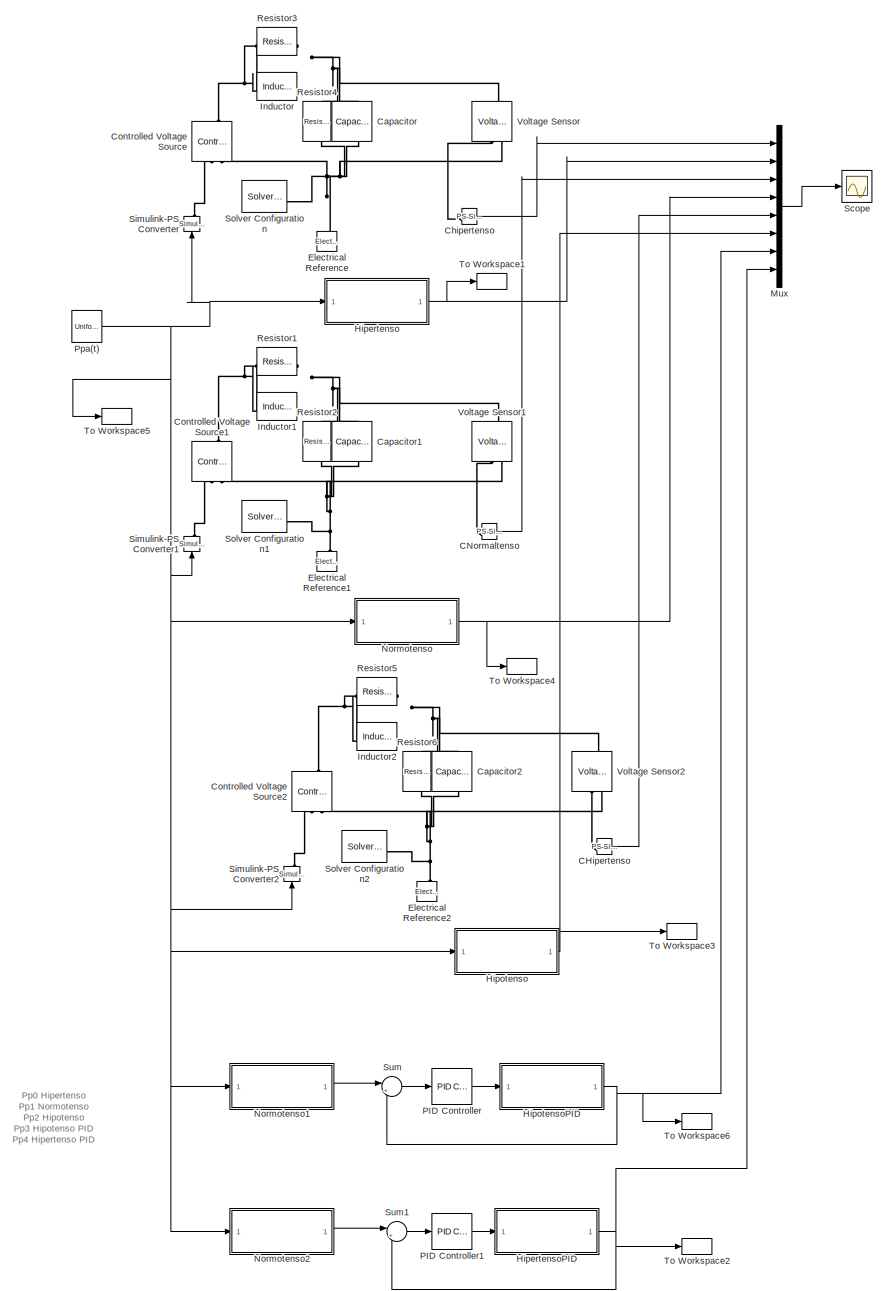
[diagram: root canvas - part 1/1, most of the canvas]
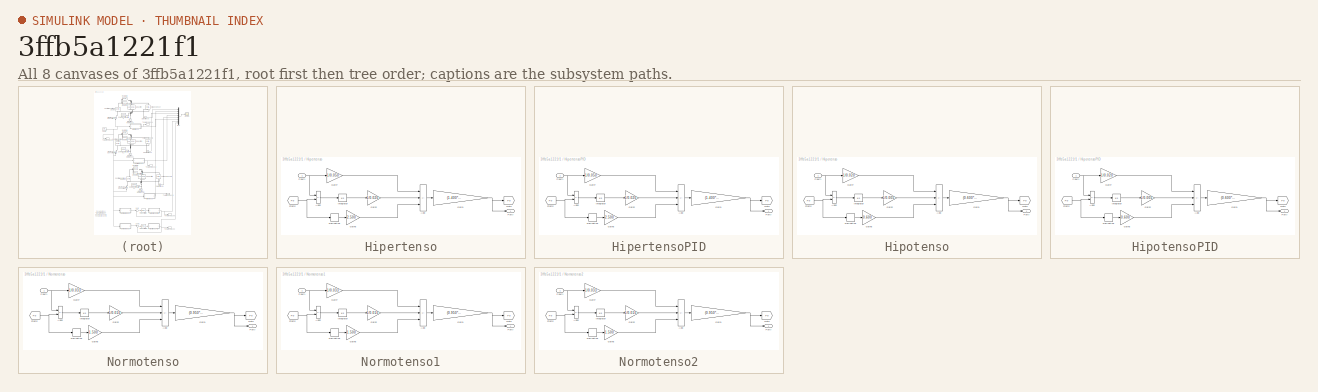
[diagram: thumbnail index - all 8 canvases of the model, root first then tree order]
MODEL slx_3ffb5a1221f1
KIND model
CONFIG AbsTol = auto
CONFIG EnableMultiTasking = off
CONFIG FixedStep = auto
CONFIG MaxStep = 1E-3
CONFIG MinStep = auto
CONFIG RelTol = 1e-5
CONFIG SampleTimeConstraint = Unconstrained
CONFIG SolverName = ode23t
CONFIG StartTime = 0.0
CONFIG StopTime = 10.0
BLOCK [Reference] CHipertenso  REF=nesl_utility/PS-Simulink
Converter
  SourceBlock = nesl_utility/PS-Simulink\nConverter
  SourceType = PS-Simulink\nConverter
BLOCK [Reference] CNormaltenso  REF=nesl_utility/PS-Simulink
Converter
  SourceBlock = nesl_utility/PS-Simulink\nConverter
  SourceType = PS-Simulink\nConverter
BLOCK [Reference] Capacitor  REF=fl_lib/Electrical/Electrical Elements/Capacitor
  NameLocation = left
  SourceBlock = fl_lib/Electrical/Electrical Elements/Capacitor
  SourceType = Capacitor
BLOCK [Reference] Capacitor1  REF=fl_lib/Electrical/Electrical Elements/Capacitor
  NameLocation = left
  SourceBlock = fl_lib/Electrical/Electrical Elements/Capacitor
  SourceType = Capacitor
BLOCK [Reference] Capacitor2  REF=fl_lib/Electrical/Electrical Elements/Capacitor
  NameLocation = left
  SourceBlock = fl_lib/Electrical/Electrical Elements/Capacitor
  SourceType = Capacitor
BLOCK [Reference] Chipertenso  REF=nesl_utility/PS-Simulink
Converter
  SourceBlock = nesl_utility/PS-Simulink\nConverter
  SourceType = PS-Simulink\nConverter
BLOCK [Reference] Controlled Voltage Source  REF=fl_lib/Electrical/Electrical Sources/Controlled Voltage
Source
  NameLocation = right
  SourceBlock = fl_lib/Electrical/Electrical Sources/Controlled Voltage\nSource
  SourceType = Controlled Voltage\nSource
BLOCK [Reference] Controlled Voltage Source1  REF=fl_lib/Electrical/Electrical Sources/Controlled Voltage
Source
  NameLocation = right
  SourceBlock = fl_lib/Electrical/Electrical Sources/Controlled Voltage\nSource
  SourceType = Controlled Voltage\nSource
BLOCK [Reference] Controlled Voltage Source2  REF=fl_lib/Electrical/Electrical Sources/Controlled Voltage
Source
  NameLocation = right
  SourceBlock = fl_lib/Electrical/Electrical Sources/Controlled Voltage\nSource
  SourceType = Controlled Voltage\nSource
BLOCK [Reference] Electrical Reference  REF=fl_lib/Electrical/Electrical Elements/Electrical Reference
  NameLocation = right
  SourceBlock = fl_lib/Electrical/Electrical Elements/Electrical Reference
  SourceType = Electrical Reference
BLOCK [Reference] Electrical Reference1  REF=fl_lib/Electrical/Electrical Elements/Electrical Reference
  NameLocation = right
  SourceBlock = fl_lib/Electrical/Electrical Elements/Electrical Reference
  SourceType = Electrical Reference
BLOCK [Reference] Electrical Reference2  REF=fl_lib/Electrical/Electrical Elements/Electrical Reference
  NameLocation = right
  SourceBlock = fl_lib/Electrical/Electrical Elements/Electrical Reference
  SourceType = Electrical Reference
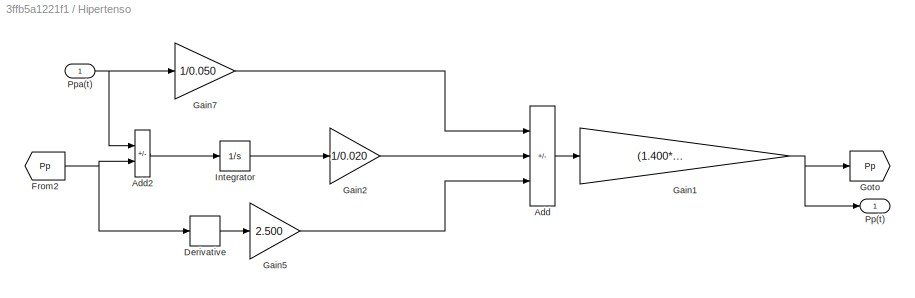
BLOCK [SubSystem] Hipertenso
BLOCK [Sum] Hipertenso/Add
  IconShape = rectangular
  Inputs = ++-
BLOCK [Sum] Hipertenso/Add2
  IconShape = rectangular
  Inputs = +-
BLOCK [Derivative] Hipertenso/Derivative
BLOCK [From] Hipertenso/From2
  GotoTag = Pp
BLOCK [Gain] Hipertenso/Gain1
  Gain = (1.400*0.050)/(1.400+0.050)
BLOCK [Gain] Hipertenso/Gain2
  Gain = 1/0.020
BLOCK [Gain] Hipertenso/Gain5
  Gain = 2.500
BLOCK [Gain] Hipertenso/Gain7
  Gain = 1/0.050
BLOCK [Goto] Hipertenso/Goto
  GotoTag = Pp
BLOCK [Integrator] Hipertenso/Integrator
BLOCK [Outport] Hipertenso/Pp(t)
BLOCK [Inport] Hipertenso/Ppa(t)
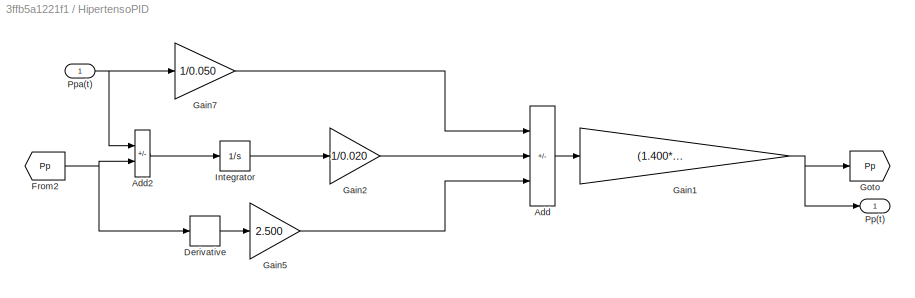
BLOCK [SubSystem] HipertensoPID
BLOCK [Sum] HipertensoPID/Add
  IconShape = rectangular
  Inputs = ++-
BLOCK [Sum] HipertensoPID/Add2
  IconShape = rectangular
  Inputs = +-
BLOCK [Derivative] HipertensoPID/Derivative
BLOCK [From] HipertensoPID/From2
  GotoTag = Pp
BLOCK [Gain] HipertensoPID/Gain1
  Gain = (1.400*0.050)/(1.400+0.050)
BLOCK [Gain] HipertensoPID/Gain2
  Gain = 1/0.020
BLOCK [Gain] HipertensoPID/Gain5
  Gain = 2.500
BLOCK [Gain] HipertensoPID/Gain7
  Gain = 1/0.050
BLOCK [Goto] HipertensoPID/Goto
  GotoTag = Pp
BLOCK [Integrator] HipertensoPID/Integrator
BLOCK [Outport] HipertensoPID/Pp(t)
BLOCK [Inport] HipertensoPID/Ppa(t)
BLOCK [SubSystem] Hipotenso
BLOCK [Sum] Hipotenso/Add
  IconShape = rectangular
  Inputs = ++-
BLOCK [Sum] Hipotenso/Add2
  IconShape = rectangular
  Inputs = +-
BLOCK [Derivative] Hipotenso/Derivative
BLOCK [From] Hipotenso/From2
  GotoTag = Pp
BLOCK [Gain] Hipotenso/Gain1
  Gain = (0.600*0.020)/(0.600+0.020)
BLOCK [Gain] Hipotenso/Gain2
  Gain = 1/0.005
BLOCK [Gain] Hipotenso/Gain5
  Gain = 0.600
BLOCK [Gain] Hipotenso/Gain7
  Gain = 1/0.020
BLOCK [Goto] Hipotenso/Goto
  GotoTag = Pp
BLOCK [Integrator] Hipotenso/Integrator
BLOCK [Outport] Hipotenso/Pp(t)
BLOCK [Inport] Hipotenso/Ppa(t)
BLOCK [SubSystem] HipotensoPID
BLOCK [Sum] HipotensoPID/Add
  IconShape = rectangular
  Inputs = ++-
BLOCK [Sum] HipotensoPID/Add2
  IconShape = rectangular
  Inputs = +-
BLOCK [Derivative] HipotensoPID/Derivative
BLOCK [From] HipotensoPID/From2
  GotoTag = Pp
BLOCK [Gain] HipotensoPID/Gain1
  Gain = (0.600*0.020)/(0.600+0.020)
BLOCK [Gain] HipotensoPID/Gain2
  Gain = 1/0.005
BLOCK [Gain] HipotensoPID/Gain5
  Gain = 0.600
BLOCK [Gain] HipotensoPID/Gain7
  Gain = 1/0.020
BLOCK [Goto] HipotensoPID/Goto
  GotoTag = Pp
BLOCK [Integrator] HipotensoPID/Integrator
BLOCK [Outport] HipotensoPID/Pp(t)
BLOCK [Inport] HipotensoPID/Ppa(t)
BLOCK [Reference] Inductor  REF=ee_lib/Passive/Inductor
  SourceBlock = ee_lib/Passive/Inductor
  SourceType = Inductor
BLOCK [Reference] Inductor1  REF=ee_lib/Passive/Inductor
  SourceBlock = ee_lib/Passive/Inductor
  SourceType = Inductor
BLOCK [Reference] Inductor2  REF=ee_lib/Passive/Inductor
  SourceBlock = ee_lib/Passive/Inductor
  SourceType = Inductor
BLOCK [Mux] Mux
  DisplayOption = bar
  Inputs = 8
BLOCK [SubSystem] Normotenso
BLOCK [Sum] Normotenso/Add
  IconShape = rectangular
  Inputs = ++-
BLOCK [Sum] Normotenso/Add2
  IconShape = rectangular
  Inputs = +-
BLOCK [Derivative] Normotenso/Derivative
BLOCK [From] Normotenso/From2
  GotoTag = Pp
BLOCK [Gain] Normotenso/Gain1
  Gain = (0.950*0.033)/(0.950+0.033)
BLOCK [Gain] Normotenso/Gain2
  Gain = 1/0.010
BLOCK [Gain] Normotenso/Gain5
  Gain = 1.500
BLOCK [Gain] Normotenso/Gain7
  Gain = 1/0.033
BLOCK [Goto] Normotenso/Goto
  GotoTag = Pp
BLOCK [Integrator] Normotenso/Integrator
BLOCK [Outport] Normotenso/Pp(t)
BLOCK [Inport] Normotenso/Ppa(t)
BLOCK [SubSystem] Normotenso1
BLOCK [Sum] Normotenso1/Add
  IconShape = rectangular
  Inputs = ++-
BLOCK [Sum] Normotenso1/Add2
  IconShape = rectangular
  Inputs = +-
BLOCK [Derivative] Normotenso1/Derivative
BLOCK [From] Normotenso1/From2
  GotoTag = Pp
BLOCK [Gain] Normotenso1/Gain1
  Gain = (0.950*0.033)/(0.950+0.033)
BLOCK [Gain] Normotenso1/Gain2
  Gain = 1/0.010
BLOCK [Gain] Normotenso1/Gain5
  Gain = 1.500
BLOCK [Gain] Normotenso1/Gain7
  Gain = 1/0.033
BLOCK [Goto] Normotenso1/Goto
  GotoTag = Pp
BLOCK [Integrator] Normotenso1/Integrator
BLOCK [Outport] Normotenso1/Pp(t)
BLOCK [Inport] Normotenso1/Ppa(t)
BLOCK [SubSystem] Normotenso2
BLOCK [Sum] Normotenso2/Add
  IconShape = rectangular
  Inputs = ++-
BLOCK [Sum] Normotenso2/Add2
  IconShape = rectangular
  Inputs = +-
BLOCK [Derivative] Normotenso2/Derivative
BLOCK [From] Normotenso2/From2
  GotoTag = Pp
BLOCK [Gain] Normotenso2/Gain1
  Gain = (0.950*0.033)/(0.950+0.033)
BLOCK [Gain] Normotenso2/Gain2
  Gain = 1/0.010
BLOCK [Gain] Normotenso2/Gain5
  Gain = 1.500
BLOCK [Gain] Normotenso2/Gain7
  Gain = 1/0.033
BLOCK [Goto] Normotenso2/Goto
  GotoTag = Pp
BLOCK [Integrator] Normotenso2/Integrator
BLOCK [Outport] Normotenso2/Pp(t)
BLOCK [Inport] Normotenso2/Ppa(t)
BLOCK [Reference] PID Controller  REF=slpidlib/PID Controller
  LibrarySourceBlock = simulink/Continuous/PID Controller
  SourceBlock = slpidlib/PID Controller
  SourceType = PID 1dof
BLOCK [Reference] PID Controller1  REF=slpidlib/PID Controller
  LibrarySourceBlock = simulink/Continuous/PID Controller
  SourceBlock = slpidlib/PID Controller
  SourceType = PID 1dof
BLOCK [UniformRandomNumber] Ppa(t)
  Minimum = -0.2
  SampleTime = 0.5
  Seed = 106
BLOCK [Reference] Resistor1  REF=ee_lib/Passive/Resistor
  NameLocation = top
  SourceBlock = ee_lib/Passive/Resistor
  SourceType = Resistor
BLOCK [Reference] Resistor2  REF=ee_lib/Passive/Resistor
  NameLocation = left
  SourceBlock = ee_lib/Passive/Resistor
  SourceType = Resistor
BLOCK [Reference] Resistor3  REF=ee_lib/Passive/Resistor
  NameLocation = top
  SourceBlock = ee_lib/Passive/Resistor
  SourceType = Resistor
BLOCK [Reference] Resistor4  REF=ee_lib/Passive/Resistor
  NameLocation = left
  SourceBlock = ee_lib/Passive/Resistor
  SourceType = Resistor
BLOCK [Reference] Resistor5  REF=ee_lib/Passive/Resistor
  NameLocation = top
  SourceBlock = ee_lib/Passive/Resistor
  SourceType = Resistor
BLOCK [Reference] Resistor6  REF=ee_lib/Passive/Resistor
  NameLocation = left
  SourceBlock = ee_lib/Passive/Resistor
  SourceType = Resistor
BLOCK [Scope] Scope
  Floating = off
  NumInputPorts = 1
  ScopeSpecificationString = Simulink.scopes.TimeScopeBlockCfg('CurrentConfiguration', extmgr.ConfigurationSet(extmgr.Configuration('Core','General UI',true,'FigureColor',[1 1 1]),extmgr.Configuration('Core','Source UI',true),extmgr.Configuration('Sources','WiredSimulink',true),extmgr.Configuration('Visuals','Time Domain',true,'SerializedDisplays',{struct('MinYLimReal','-1.00000','MaxYLimReal','1.2817','YLabelReal','','MinYLi...<+2404ch>
BLOCK [Reference] Simulink-PS Converter  REF=nesl_utility/Simulink-PS
Converter
  NameLocation = right
  SourceBlock = nesl_utility/Simulink-PS\nConverter
  SourceType = Simulink-PS\nConverter
BLOCK [Reference] Simulink-PS Converter1  REF=nesl_utility/Simulink-PS
Converter
  NameLocation = right
  SourceBlock = nesl_utility/Simulink-PS\nConverter
  SourceType = Simulink-PS\nConverter
BLOCK [Reference] Simulink-PS Converter2  REF=nesl_utility/Simulink-PS
Converter
  NameLocation = right
  SourceBlock = nesl_utility/Simulink-PS\nConverter
  SourceType = Simulink-PS\nConverter
BLOCK [Reference] Solver Configuration  REF=nesl_utility/Solver
Configuration
  SourceBlock = nesl_utility/Solver\nConfiguration
  SourceType = Solver\nConfiguration
BLOCK [Reference] Solver Configuration1  REF=nesl_utility/Solver
Configuration
  SourceBlock = nesl_utility/Solver\nConfiguration
  SourceType = Solver\nConfiguration
BLOCK [Reference] Solver Configuration2  REF=nesl_utility/Solver
Configuration
  SourceBlock = nesl_utility/Solver\nConfiguration
  SourceType = Solver\nConfiguration
BLOCK [Sum] Sum
  Inputs = |+-
BLOCK [Sum] Sum1
  Inputs = |+-
BLOCK [ToWorkspace] To Workspace1
  FixptAsFi = on
  MaxDataPoints = inf
  SampleTime = -1
  VariableName = Pp0
BLOCK [ToWorkspace] To Workspace2
  FixptAsFi = on
  MaxDataPoints = inf
  SampleTime = -1
  VariableName = Pp4
BLOCK [ToWorkspace] To Workspace3
  FixptAsFi = on
  MaxDataPoints = inf
  SampleTime = -1
  VariableName = Pp2
BLOCK [ToWorkspace] To Workspace4
  FixptAsFi = on
  MaxDataPoints = inf
  SampleTime = -1
  VariableName = Pp1
BLOCK [ToWorkspace] To Workspace5
  FixptAsFi = on
  MaxDataPoints = inf
  SampleTime = -1
  VariableName = Ppa
BLOCK [ToWorkspace] To Workspace6
  FixptAsFi = on
  MaxDataPoints = inf
  SampleTime = -1
  VariableName = Pp3
BLOCK [Reference] Voltage Sensor  REF=fl_lib/Electrical/Electrical Sensors/Voltage Sensor
  NameLocation = right
  SourceBlock = fl_lib/Electrical/Electrical Sensors/Voltage Sensor
  SourceType = Voltage Sensor
BLOCK [Reference] Voltage Sensor1  REF=fl_lib/Electrical/Electrical Sensors/Voltage Sensor
  NameLocation = right
  SourceBlock = fl_lib/Electrical/Electrical Sensors/Voltage Sensor
  SourceType = Voltage Sensor
BLOCK [Reference] Voltage Sensor2  REF=fl_lib/Electrical/Electrical Sensors/Voltage Sensor
  NameLocation = right
  SourceBlock = fl_lib/Electrical/Electrical Sensors/Voltage Sensor
  SourceType = Voltage Sensor
ANNOTATION (root): Pp0 Hipertenso Pp1 Normotenso Pp2 Hipotenso Pp3 Hipotenso PID Pp4 Hipertenso PID
LINE CHipertenso:1 -> Mux:5
LINE CNormaltenso:1 -> Mux:3
LINE Chipertenso:1 -> Mux:1
LINE Hipertenso/Add2:1 -> Hipertenso/Integrator:1
LINE Hipertenso/Add:1 -> Hipertenso/Gain1:1
LINE Hipertenso/Derivative:1 -> Hipertenso/Gain5:1
NET Hipertenso/From2:1 -> Hipertenso/Add2:2, Hipertenso/Derivative:1
NET Hipertenso/Gain1:1 -> Hipertenso/Goto:1, Hipertenso/Pp(t):1
LINE Hipertenso/Gain2:1 -> Hipertenso/Add:2
LINE Hipertenso/Gain5:1 -> Hipertenso/Add:3
LINE Hipertenso/Gain7:1 -> Hipertenso/Add:1
LINE Hipertenso/Integrator:1 -> Hipertenso/Gain2:1
NET Hipertenso/Ppa(t):1 -> Hipertenso/Add2:1, Hipertenso/Gain7:1
NET Hipertenso:1 -> Mux:2, To Workspace1:1
LINE HipertensoPID/Add2:1 -> HipertensoPID/Integrator:1
LINE HipertensoPID/Add:1 -> HipertensoPID/Gain1:1
LINE HipertensoPID/Derivative:1 -> HipertensoPID/Gain5:1
NET HipertensoPID/From2:1 -> HipertensoPID/Add2:2, HipertensoPID/Derivative:1
NET HipertensoPID/Gain1:1 -> HipertensoPID/Goto:1, HipertensoPID/Pp(t):1
LINE HipertensoPID/Gain2:1 -> HipertensoPID/Add:2
LINE HipertensoPID/Gain5:1 -> HipertensoPID/Add:3
LINE HipertensoPID/Gain7:1 -> HipertensoPID/Add:1
LINE HipertensoPID/Integrator:1 -> HipertensoPID/Gain2:1
NET HipertensoPID/Ppa(t):1 -> HipertensoPID/Add2:1, HipertensoPID/Gain7:1
NET HipertensoPID:1 -> Mux:8, Sum1:2, To Workspace2:1
LINE Hipotenso/Add2:1 -> Hipotenso/Integrator:1
LINE Hipotenso/Add:1 -> Hipotenso/Gain1:1
LINE Hipotenso/Derivative:1 -> Hipotenso/Gain5:1
NET Hipotenso/From2:1 -> Hipotenso/Add2:2, Hipotenso/Derivative:1
NET Hipotenso/Gain1:1 -> Hipotenso/Goto:1, Hipotenso/Pp(t):1
LINE Hipotenso/Gain2:1 -> Hipotenso/Add:2
LINE Hipotenso/Gain5:1 -> Hipotenso/Add:3
LINE Hipotenso/Gain7:1 -> Hipotenso/Add:1
LINE Hipotenso/Integrator:1 -> Hipotenso/Gain2:1
NET Hipotenso/Ppa(t):1 -> Hipotenso/Add2:1, Hipotenso/Gain7:1
NET Hipotenso:1 -> Mux:6, To Workspace3:1
LINE HipotensoPID/Add2:1 -> HipotensoPID/Integrator:1
LINE HipotensoPID/Add:1 -> HipotensoPID/Gain1:1
LINE HipotensoPID/Derivative:1 -> HipotensoPID/Gain5:1
NET HipotensoPID/From2:1 -> HipotensoPID/Add2:2, HipotensoPID/Derivative:1
NET HipotensoPID/Gain1:1 -> HipotensoPID/Goto:1, HipotensoPID/Pp(t):1
LINE HipotensoPID/Gain2:1 -> HipotensoPID/Add:2
LINE HipotensoPID/Gain5:1 -> HipotensoPID/Add:3
LINE HipotensoPID/Gain7:1 -> HipotensoPID/Add:1
LINE HipotensoPID/Integrator:1 -> HipotensoPID/Gain2:1
NET HipotensoPID/Ppa(t):1 -> HipotensoPID/Add2:1, HipotensoPID/Gain7:1
NET HipotensoPID:1 -> Mux:7, Sum:2, To Workspace6:1
LINE Mux:1 -> Scope:1
LINE Normotenso/Add2:1 -> Normotenso/Integrator:1
LINE Normotenso/Add:1 -> Normotenso/Gain1:1
LINE Normotenso/Derivative:1 -> Normotenso/Gain5:1
NET Normotenso/From2:1 -> Normotenso/Add2:2, Normotenso/Derivative:1
NET Normotenso/Gain1:1 -> Normotenso/Goto:1, Normotenso/Pp(t):1
LINE Normotenso/Gain2:1 -> Normotenso/Add:2
LINE Normotenso/Gain5:1 -> Normotenso/Add:3
LINE Normotenso/Gain7:1 -> Normotenso/Add:1
LINE Normotenso/Integrator:1 -> Normotenso/Gain2:1
NET Normotenso/Ppa(t):1 -> Normotenso/Add2:1, Normotenso/Gain7:1
LINE Normotenso1/Add2:1 -> Normotenso1/Integrator:1
LINE Normotenso1/Add:1 -> Normotenso1/Gain1:1
LINE Normotenso1/Derivative:1 -> Normotenso1/Gain5:1
NET Normotenso1/From2:1 -> Normotenso1/Add2:2, Normotenso1/Derivative:1
NET Normotenso1/Gain1:1 -> Normotenso1/Goto:1, Normotenso1/Pp(t):1
LINE Normotenso1/Gain2:1 -> Normotenso1/Add:2
LINE Normotenso1/Gain5:1 -> Normotenso1/Add:3
LINE Normotenso1/Gain7:1 -> Normotenso1/Add:1
LINE Normotenso1/Integrator:1 -> Normotenso1/Gain2:1
NET Normotenso1/Ppa(t):1 -> Normotenso1/Add2:1, Normotenso1/Gain7:1
LINE Normotenso1:1 -> Sum:1
LINE Normotenso2/Add2:1 -> Normotenso2/Integrator:1
LINE Normotenso2/Add:1 -> Normotenso2/Gain1:1
LINE Normotenso2/Derivative:1 -> Normotenso2/Gain5:1
NET Normotenso2/From2:1 -> Normotenso2/Add2:2, Normotenso2/Derivative:1
NET Normotenso2/Gain1:1 -> Normotenso2/Goto:1, Normotenso2/Pp(t):1
LINE Normotenso2/Gain2:1 -> Normotenso2/Add:2
LINE Normotenso2/Gain5:1 -> Normotenso2/Add:3
LINE Normotenso2/Gain7:1 -> Normotenso2/Add:1
LINE Normotenso2/Integrator:1 -> Normotenso2/Gain2:1
NET Normotenso2/Ppa(t):1 -> Normotenso2/Add2:1, Normotenso2/Gain7:1
LINE Normotenso2:1 -> Sum1:1
NET Normotenso:1 -> Mux:4, To Workspace4:1
LINE PID Controller1:1 -> HipertensoPID:1
LINE PID Controller:1 -> HipotensoPID:1
NET Ppa(t):1 -> Hipertenso:1, Hipotenso:1, Normotenso1:1, Normotenso2:1, Normotenso:1, Simulink-PS Converter1:1, Simulink-PS Converter2:1, Simulink-PS Converter:1, To Workspace5:1
LINE Sum1:1 -> PID Controller1:1
LINE Sum:1 -> PID Controller:1
PLINE CHipertenso:LConn1 -- Voltage Sensor2:RConn1
PLINE CNormaltenso:LConn1 -- Voltage Sensor1:RConn1
PNET net1: Capacitor1:LConn1 -- Inductor1:RConn1 -- Resistor1:LConn1 -- Resistor2:LConn1 -- Voltage Sensor1:LConn1
PNET net2: Capacitor1:RConn1 -- Controlled Voltage Source1:RConn2 -- Electrical Reference1:LConn1 -- Resistor2:RConn1 -- Solver Configuration1:RConn1 -- Voltage Sensor1:RConn2
PNET net3: Capacitor2:LConn1 -- Inductor2:RConn1 -- Resistor5:LConn1 -- Resistor6:LConn1 -- Voltage Sensor2:LConn1
PNET net4: Capacitor2:RConn1 -- Controlled Voltage Source2:RConn2 -- Electrical Reference2:LConn1 -- Resistor6:RConn1 -- Solver Configuration2:RConn1 -- Voltage Sensor2:RConn2
PNET net5: Capacitor:LConn1 -- Inductor:RConn1 -- Resistor3:LConn1 -- Resistor4:LConn1 -- Voltage Sensor:LConn1
PNET net6: Capacitor:RConn1 -- Controlled Voltage Source:RConn2 -- Electrical Reference:LConn1 -- Resistor4:RConn1 -- Solver Configuration:RConn1 -- Voltage Sensor:RConn2
PLINE Chipertenso:LConn1 -- Voltage Sensor:RConn1
PNET net7: Controlled Voltage Source1:LConn1 -- Inductor1:LConn1 -- Resistor1:RConn1
PLINE Controlled Voltage Source1:RConn1 -- Simulink-PS Converter1:RConn1
PNET net8: Controlled Voltage Source2:LConn1 -- Inductor2:LConn1 -- Resistor5:RConn1
PLINE Controlled Voltage Source2:RConn1 -- Simulink-PS Converter2:RConn1
PNET net9: Controlled Voltage Source:LConn1 -- Inductor:LConn1 -- Resistor3:RConn1
PLINE Controlled Voltage Source:RConn1 -- Simulink-PS Converter:RConn1
note: NET lines group one-source signal fan-out (src -> all destinations, sorted); 1:1 wires keep LINE; PNET lines group multi-terminal physical nets as a canonical sorted terminal list (undirected conserving connections); 2-terminal nets keep the pairwise PLINE form
